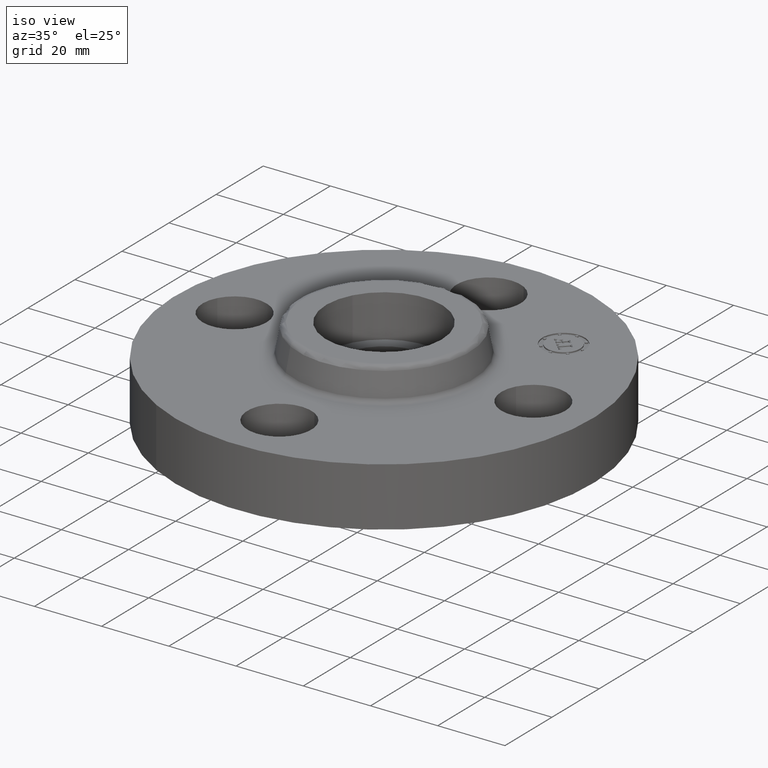
[diagram: clean part render]
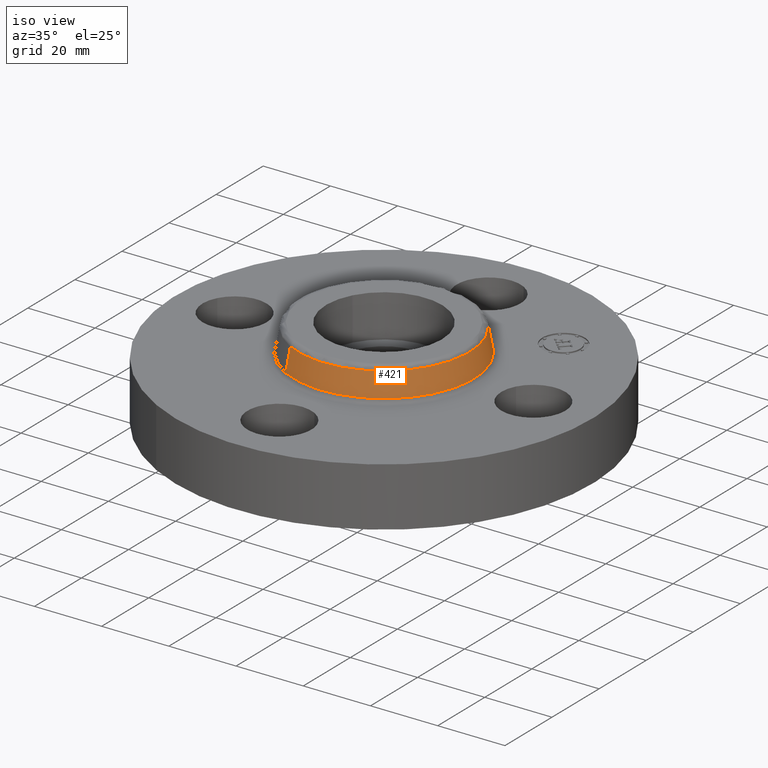
[diagram: same view with one face highlighted and labeled with its STEP entity id]
A machine part, iso view. The second image highlights one B-rep face of the part: STEP entity #421.
In plain terms, the highlighted conical surface has half-angle 10 deg.
Its self-contained STEP definition (entity closure, byte-faithful):
#357=AXIS2_PLACEMENT_3D('Circle Axis2P3D',#355,#356,$) ;
#394=AXIS2_PLACEMENT_3D('Cone Axis2P3D',#391,#392,#393) ;
#405=AXIS2_PLACEMENT_3D('Circle Axis2P3D',#403,#404,$) ;
#352=CARTESIAN_POINT('Vertex',(0.503999699235,0.922565261197,0.739581109343)) ;
#355=CARTESIAN_POINT('Axis2P3D Location',(0.,0.,0.739581109343)) ;
#359=CARTESIAN_POINT('Vertex',(-0.503999699235,-0.922565261197,0.739581109343)) ;
#391=CARTESIAN_POINT('Axis2P3D Location',(0.,0.,1.01041889066)) ;
#396=CARTESIAN_POINT('Line Origine',(0.492551974249,0.901610341167,0.875000000004)) ;
#400=CARTESIAN_POINT('Vertex',(0.481104249262,0.880655421138,1.01041889066)) ;
#403=CARTESIAN_POINT('Axis2P3D Location',(0.,0.,1.01041889066)) ;
#407=CARTESIAN_POINT('Vertex',(-0.481104249262,-0.880655421138,1.01041889066)) ;
#410=CARTESIAN_POINT('Line Origine',(-0.492551974249,-0.901610341167,0.875000000004)) ;
#356=DIRECTION('Axis2P3D Direction',(0.,0.,-0.0393700787402)) ;
#392=DIRECTION('Axis2P3D Direction',(0.,0.,-0.0393700787402)) ;
#393=DIRECTION('Axis2P3D XDirection',(-0.0188750212049,-0.0345504945626,0.)) ;
#397=DIRECTION('Vector Direction',(0.00327761303565,0.00599963041829,-0.03877195878)) ;
#404=DIRECTION('Axis2P3D Direction',(0.,0.,-0.0393700787402)) ;
#411=DIRECTION('Vector Direction',(-0.00327761303565,-0.00599963041829,-0.03877195878)) ;
#398=VECTOR('Line Direction',#397,0.0393700787402) ;
#412=VECTOR('Line Direction',#411,0.0393700787402) ;
#416=ORIENTED_EDGE('',*,*,#361,.F.) ;
#417=ORIENTED_EDGE('',*,*,#402,.T.) ;
#418=ORIENTED_EDGE('',*,*,#409,.T.) ;
#419=ORIENTED_EDGE('',*,*,#414,.F.) ;
#421=ADVANCED_FACE('PartBody',(#420),#395,.T.) ;
#358=CIRCLE('generated circle',#357,1.05125751269) ;
#406=CIRCLE('generated circle',#405,1.00350150445) ;
#395=CONICAL_SURFACE('Cone',#394,1.00350150445,0.174532925199) ;
#361=EDGE_CURVE('',#353,#360,#358,.T.) ;
#402=EDGE_CURVE('',#353,#401,#399,.F.) ;
#409=EDGE_CURVE('',#401,#408,#406,.T.) ;
#414=EDGE_CURVE('',#360,#408,#413,.F.) ;
#415=EDGE_LOOP('',(#416,#417,#418,#419)) ;
#420=FACE_OUTER_BOUND('',#415,.T.) ;
#399=LINE('Line',#396,#398) ;
#413=LINE('Line',#410,#412) ;
#353=VERTEX_POINT('',#352) ;
#360=VERTEX_POINT('',#359) ;
#401=VERTEX_POINT('',#400) ;
#408=VERTEX_POINT('',#407) ;